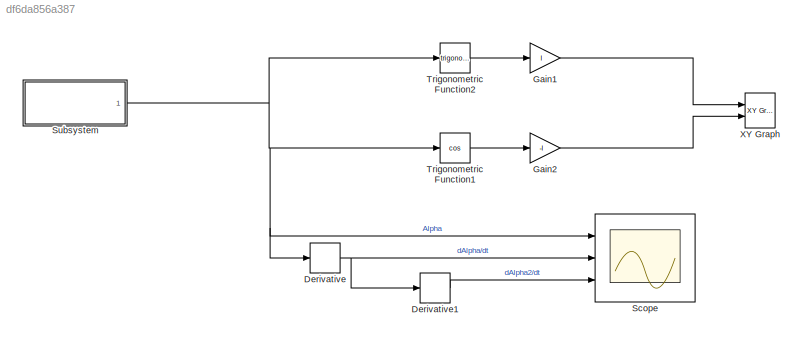
MODEL slx_df6da856a387
KIND model
CONFIG AbsTol = auto
CONFIG FixedStep = h
CONFIG MaxStep = auto
CONFIG MinStep = auto
CONFIG RelTol = 1e-3
CONFIG SampleTimeConstraint = Unconstrained
CONFIG Solver = FixedStepAuto
CONFIG SolverMode = Auto
CONFIG SolverName = FixedStepAuto
CONFIG StartTime = t0
CONFIG StopTime = tf
BLOCK [Derivative] Derivative
BLOCK [Derivative] Derivative1
BLOCK [Gain] Gain1
  Gain = l
  OutDataTypeStr = Inherit: Inherit via internal rule
  ParamDataTypeStr = Inherit: Inherit via internal rule
  SaturateOnIntegerOverflow = off
BLOCK [Gain] Gain2
  Gain = -l
  OutDataTypeStr = Inherit: Inherit via internal rule
  ParamDataTypeStr = Inherit: Inherit via internal rule
  SaturateOnIntegerOverflow = off
BLOCK [Scope] Scope
  NumInputPorts = 3
  Ports = [3]
  ScopeSpecificationString = Simulink.scopes.TimeScopeBlockCfg('CurrentConfiguration', extmgr.ConfigurationSet(extmgr.Configuration('Core','General UI',true),extmgr.Configuration('Core','Source UI',true),extmgr.Configuration('Sources','WiredSimulink',true),extmgr.Configuration('Visuals','Time Domain',true,'SerializedDisplays',{struct('MinYLimReal','-224.10297','MaxYLimReal','40.60567','YLabelReal','','MinYLimMag',' 0.00000','...<+1433ch>
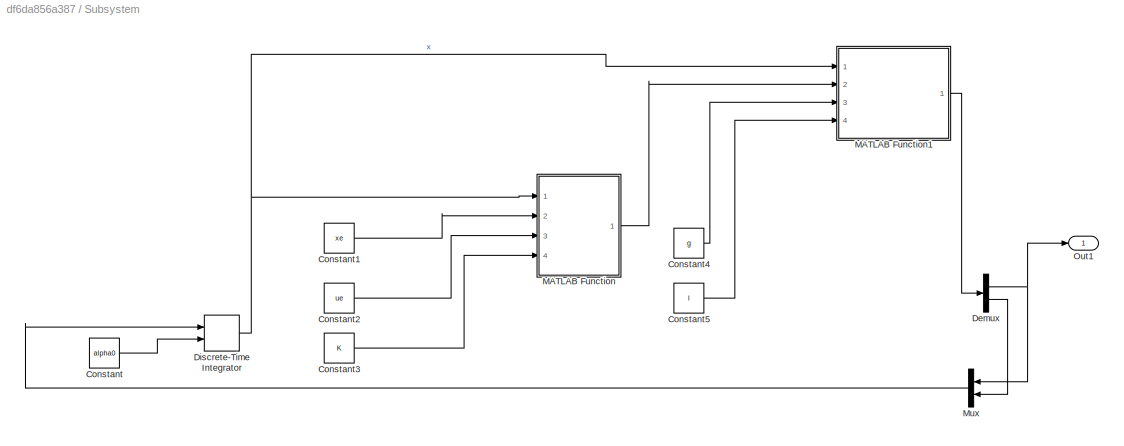
BLOCK [SubSystem] Subsystem
  Ports = [0, 1]
  RequestExecContextInheritance = off
  Variant = off
BLOCK [Constant] Subsystem/Constant
  Value = alpha0
BLOCK [Constant] Subsystem/Constant1
  Value = xe
  VectorParams1D = off
BLOCK [Constant] Subsystem/Constant2
  Value = ue
BLOCK [Constant] Subsystem/Constant3
  Value = K
  VectorParams1D = off
BLOCK [Constant] Subsystem/Constant4
  Value = g
BLOCK [Constant] Subsystem/Constant5
  Value = l
BLOCK [Demux] Subsystem/Demux
  DisplayOption = bar
  Outputs = 2
  Ports = [1, 2]
BLOCK [DiscreteIntegrator] Subsystem/Discrete-Time Integrator
  ICPrevOutput = DiscIntNeverNeededParam
  ICPrevScaledInput = DiscIntNeverNeededParam
  InitialConditionSetting = State (most efficient)
  InitialConditionSource = external
  Ports = [2, 1]
  SampleTime = h
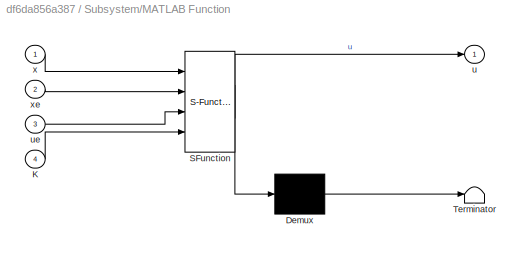
BLOCK [SubSystem] Subsystem/MATLAB Function
  ErrorFcn = Stateflow.Translate.translate
  PermitHierarchicalResolution = ExplicitOnly
  Ports = [4, 1]
  RequestExecContextInheritance = off
  SFBlockType = MATLAB Function
  TreatAsAtomicUnit = on
  Variant = off
BLOCK [Demux] Subsystem/MATLAB Function/ Demux 
  Outputs = 1
  Ports = [1, 1]
BLOCK [S-Function] Subsystem/MATLAB Function/ SFunction 
  EnableBusSupport = on
  FunctionName = sf_sfun
  PortCounts = [4 2]
  Ports = [4, 2]
  SFunctionDeploymentMode = off
  Tag = Stateflow S-Function penduleSimple_TP3_function 1
BLOCK [Terminator] Subsystem/MATLAB Function/ Terminator 
BLOCK [Inport] Subsystem/MATLAB Function/K
  IconDisplay = Port number
  Port = 4
BLOCK [Outport] Subsystem/MATLAB Function/u
  IconDisplay = Port number
BLOCK [Inport] Subsystem/MATLAB Function/ue
  IconDisplay = Port number
  Port = 3
BLOCK [Inport] Subsystem/MATLAB Function/x
  IconDisplay = Port number
BLOCK [Inport] Subsystem/MATLAB Function/xe
  IconDisplay = Port number
  Port = 2
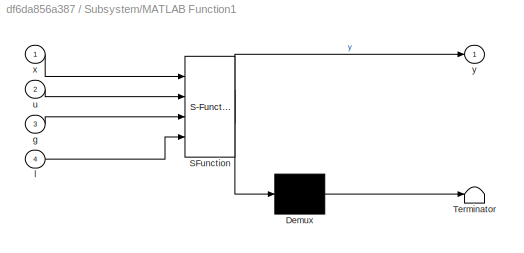
BLOCK [SubSystem] Subsystem/MATLAB Function1
  ErrorFcn = Stateflow.Translate.translate
  PermitHierarchicalResolution = ExplicitOnly
  Ports = [4, 1]
  RequestExecContextInheritance = off
  SFBlockType = MATLAB Function
  TreatAsAtomicUnit = on
  Variant = off
BLOCK [Demux] Subsystem/MATLAB Function1/ Demux 
  Outputs = 1
  Ports = [1, 1]
BLOCK [S-Function] Subsystem/MATLAB Function1/ SFunction 
  EnableBusSupport = on
  FunctionName = sf_sfun
  PortCounts = [4 2]
  Ports = [4, 2]
  SFunctionDeploymentMode = off
  Tag = Stateflow S-Function penduleSimple_TP3_function 2
BLOCK [Terminator] Subsystem/MATLAB Function1/ Terminator 
BLOCK [Inport] Subsystem/MATLAB Function1/g
  IconDisplay = Port number
  Port = 3
BLOCK [Inport] Subsystem/MATLAB Function1/l
  IconDisplay = Port number
  Port = 4
BLOCK [Inport] Subsystem/MATLAB Function1/u
  IconDisplay = Port number
  Port = 2
BLOCK [Inport] Subsystem/MATLAB Function1/x
  IconDisplay = Port number
BLOCK [Outport] Subsystem/MATLAB Function1/y
  IconDisplay = Port number
BLOCK [Mux] Subsystem/Mux
  DisplayOption = bar
  Inputs = 2
  Ports = [2, 1]
BLOCK [Outport] Subsystem/Out1
  IconDisplay = Port number
BLOCK [Trigonometry] Trigonometric Function1
  Operator = cos
  Ports = [1, 1]
BLOCK [Trigonometry] Trigonometric Function2
  Ports = [1, 1]
BLOCK [Reference] XY Graph  REF=simulink/Sinks/XY Graph
  Ports = [2]
  SourceBlock = simulink/Sinks/XY Graph
  SourceType = XY scope.
LINE Derivative1:1 -> Scope:3
NET Derivative:1 -> Derivative1:1, Scope:2
LINE Gain1:1 -> XY Graph:1
LINE Gain2:1 -> XY Graph:2
LINE Subsystem/Constant1:1 -> Subsystem/MATLAB Function:2
LINE Subsystem/Constant2:1 -> Subsystem/MATLAB Function:3
LINE Subsystem/Constant3:1 -> Subsystem/MATLAB Function:4
LINE Subsystem/Constant4:1 -> Subsystem/MATLAB Function1:3
LINE Subsystem/Constant5:1 -> Subsystem/MATLAB Function1:4
LINE Subsystem/Constant:1 -> Subsystem/Discrete-Time Integrator:2
NET Subsystem/Demux:1 -> Subsystem/Mux:1, Subsystem/Out1:1
LINE Subsystem/Demux:2 -> Subsystem/Mux:2
NET Subsystem/Discrete-Time Integrator:1 -> Subsystem/MATLAB Function1:1, Subsystem/MATLAB Function:1
LINE Subsystem/MATLAB Function1:1 -> Subsystem/Demux:1
LINE Subsystem/MATLAB Function:1 -> Subsystem/MATLAB Function1:2
LINE Subsystem/Mux:1 -> Subsystem/Discrete-Time Integrator:1
NET Subsystem:1 -> Derivative:1, Scope:1, Trigonometric Function1:1, Trigonometric Function2:1
LINE Trigonometric Function1:1 -> Gain2:1
LINE Trigonometric Function2:1 -> Gain1:1
note: NET lines group one-source signal fan-out (src -> all destinations, sorted); 1:1 wires keep LINE
CHART Subsystem/MATLAB Function states=1 transitions=1
  STATE_LABEL 'eML_blk_kernel()'
  STATE_LABEL "SCRIPT:\nfunction u = calcul_u(x, xe, ue, K)\n    u = ue + K'*(x-xe);\nend\n\n"
CHART Subsystem/MATLAB Function1 states=1 transitions=1
  STATE_LABEL 'eML_blk_kernel()'
  STATE_LABEL 'SCRIPT:\nfunction y = pendule_inverse(x,u,g,l)\n    y = zeros(2,1);\n    y(1)= x(2);\n    y(2) = g/l*sin(x(1))-((u*cos(x(1)))/l);\nend\n\n'
